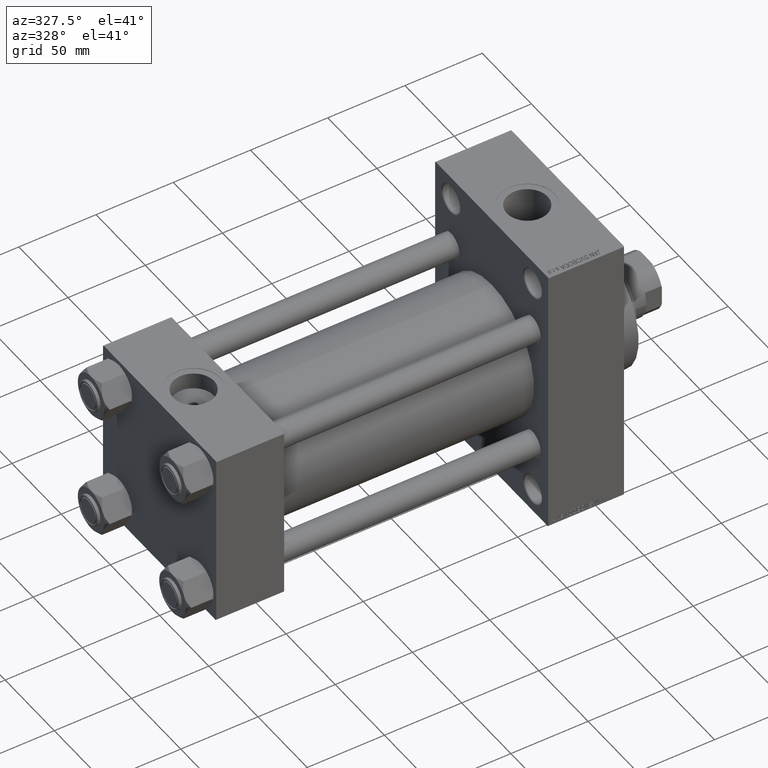
[diagram: clean part render]
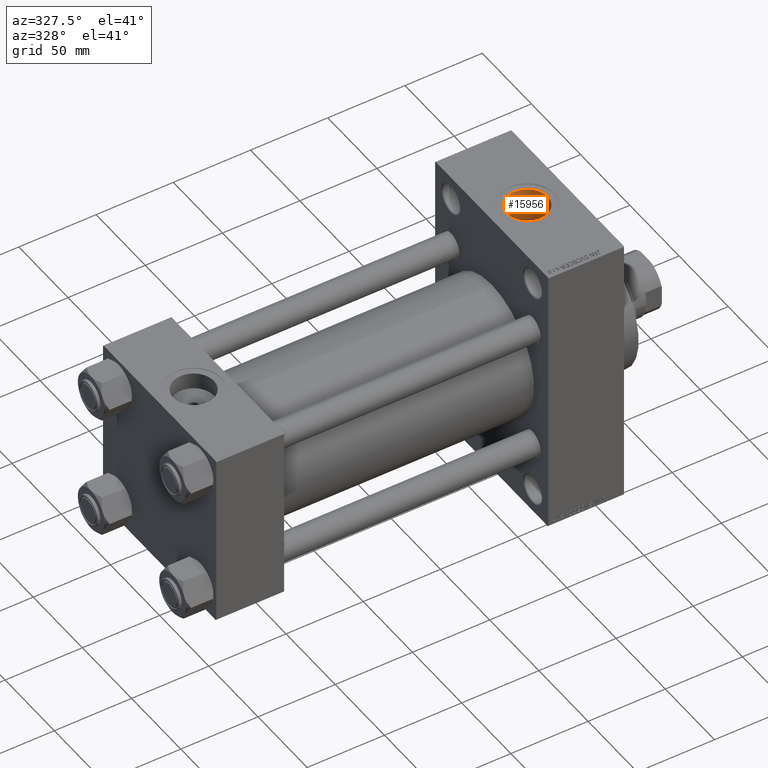
[diagram: same view with one face highlighted and labeled with its STEP entity id]
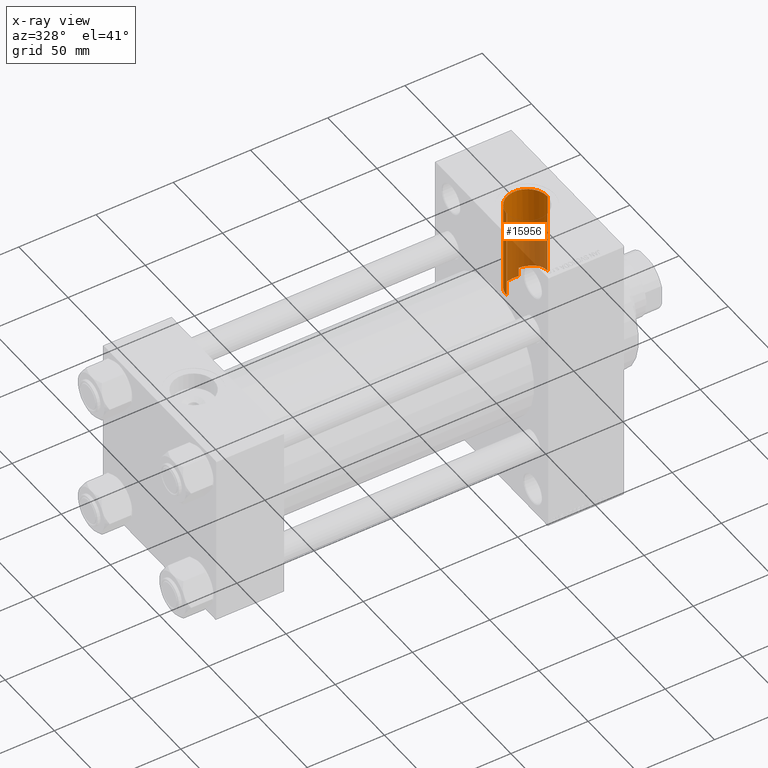
[diagram: x-ray of the same camera — body ghosted, the highlighted face saturated]
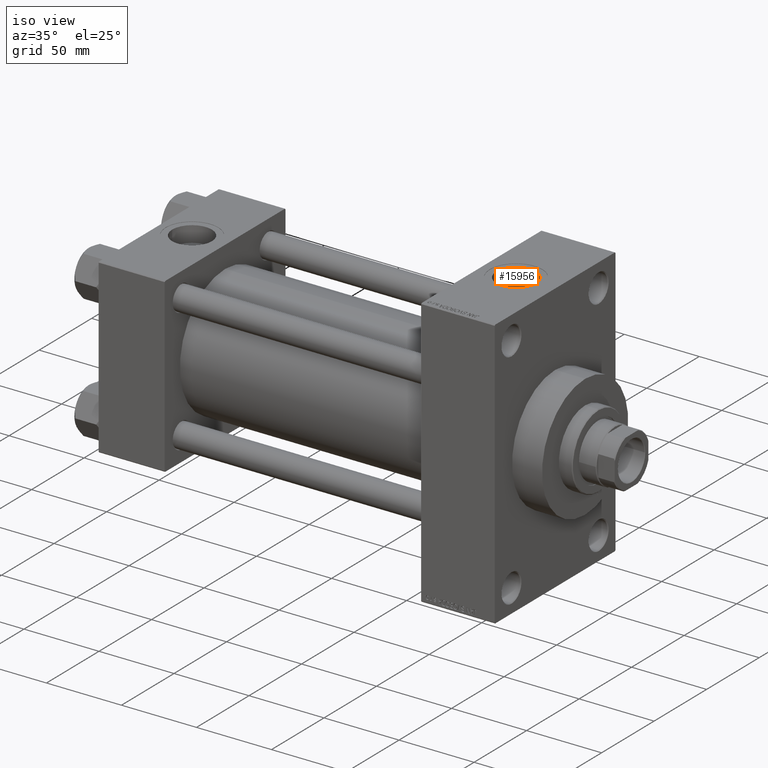
[diagram: same view with one face highlighted and labeled with its STEP entity id]
A machine part, auxiliary view. The second image highlights one B-rep face of the part: STEP entity #15956.
The next image is the same camera in x-ray: the body ghosted, the highlighted face saturated — about 46% of this face is hidden behind the body in this view.
A second angle (iso view) of the same face is appended — the face is thin or edge-on in the first view.
In plain terms, the highlighted cylindrical surface (edge-blend (fillet) strip) has radius 13.22 mm, axis along (0, 0, -1).
Its self-contained STEP definition (entity closure, byte-faithful):
#571 = DIRECTION ( 'NONE',  ( 0.000000000000000000, 0.000000000000000000, -1.000000000000000000 ) ) ;
#1928 = ORIENTED_EDGE ( 'NONE', *, *, #45464, .T. ) ;
#2111 = EDGE_CURVE ( 'NONE', #15084, #37032, #30290, .T. ) ;
#2194 = VERTEX_POINT ( 'NONE', #43598 ) ;
#2398 = EDGE_CURVE ( 'NONE', #3997, #2194, #34122, .T. ) ;
#2737 = CARTESIAN_POINT ( 'NONE',  ( 243.5945103277782948, 12.00118958920799983, 33.94198458417640296 ) ) ;
#3338 = CARTESIAN_POINT ( 'NONE',  ( 240.7400000000000375, 12.93293470176043947, 112.7999999999999829 ) ) ;
#3762 = CARTESIAN_POINT ( 'NONE',  ( 246.9855853527145939, 9.703877399782234292, 34.66842035655219689 ) ) ;
#3852 = CARTESIAN_POINT ( 'NONE',  ( 230.4271501200177283, 10.84687044312919646, 28.50745100355764450 ) ) ;
#3997 = VERTEX_POINT ( 'NONE', #41715 ) ;
#4182 = ORIENTED_EDGE ( 'NONE', *, *, #17422, .T. ) ;
#6552 = EDGE_CURVE ( 'NONE', #7352, #37032, #11147, .T. ) ;
#6762 = CARTESIAN_POINT ( 'NONE',  ( 251.1379817546423112, 1.518265865167174322, 35.96994912351961204 ) ) ;
#7025 = CARTESIAN_POINT ( 'NONE',  ( 251.2033327349465424, 0.7640029534827972313, 35.99386990409605147 ) ) ;
#7352 = VERTEX_POINT ( 'NONE', #11669 ) ;
#7365 = CARTESIAN_POINT ( 'NONE',  ( 225.2233236804503633, 3.430416358514371211, 30.31031417239466208 ) ) ;
#7523 = CARTESIAN_POINT ( 'NONE',  ( 242.2060821151613652, 12.55531642788232993, 33.74093801992369634 ) ) ;
#7624 = CARTESIAN_POINT ( 'NONE',  ( 224.9192796940202754, 1.977766912824123757, 30.43984725220107990 ) ) ;
#7884 = CARTESIAN_POINT ( 'NONE',  ( 229.2896176093951226, 9.956384615881470168, 28.83096279477900836 ) ) ;
#9604 = DIRECTION ( 'NONE',  ( 1.000000000000000000, 0.000000000000000000, 0.000000000000000000 ) ) ;
#9614 = ORIENTED_EDGE ( 'NONE', *, *, #2398, .F. ) ;
#10213 = DIRECTION ( 'NONE',  ( 0.000000000000000000, 0.000000000000000000, -1.000000000000000000 ) ) ;
#10914 = CARTESIAN_POINT ( 'NONE',  ( 235.3256342958763980, 12.95594869095342361, 27.61177267963252646 ) ) ;
#11147 = B_SPLINE_CURVE_WITH_KNOTS ( 'NONE', 3,
 ( #33811, #30547, #22226, #7624, #18684, #7365, #45652, #49421, #14659, #15174, #15414, #18941, #11909, #22975, #7884, #14918, #3852, #27277, #30029, #27032, #19442, #10914, #11165, #34814, #22716, #30291, #38074, #34321, #30790, #46151 ),
 .UNSPECIFIED., .F., .F.,
 ( 4, 2, 2, 2, 2, 2, 2, 2, 2, 2, 2, 2, 2, 2, 4 ),
 ( 0.04185757538675115297, 0.04333653936425788805, 0.04481550334176461620, 0.04629446731927135128, 0.04777343129677807942, 0.05073135925179154265, 0.05221032322929830549, 0.05368928720680506139, 0.05516825118431181729, 0.05664721516181857319, 0.05960514311683201560, 0.06108410709433872987, 0.06256307107184545802, 0.06404203504935218616, 0.06552099902685890043 ),
 .UNSPECIFIED. ) ;
#11165 = CARTESIAN_POINT ( 'NONE',  ( 235.8119409645371150, 13.04724532387751701, 27.56854024737253894 ) ) ;
#11669 = CARTESIAN_POINT ( 'NONE',  ( 224.7800000000000580, 3.735152335644797090E-15, 30.50000000000000000 ) ) ;
#11909 = CARTESIAN_POINT ( 'NONE',  ( 228.2493793498787227, 8.940352169284469852, 29.16250894268883442 ) ) ;
#12450 = CARTESIAN_POINT ( 'NONE',  ( 251.2200000000000557, -9.241894346338513140E-15, 112.7999999999999829 ) ) ;
#13714 = CARTESIAN_POINT ( 'NONE',  ( 240.7400000000000375, 12.93293470176043947, 27.62225914004864080 ) ) ;
#14114 = CARTESIAN_POINT ( 'NONE',  ( 238.0000000000000568, -1.086087741481131350E-14, 89.79999999999998295 ) ) ;
#14659 = CARTESIAN_POINT ( 'NONE',  ( 225.8710626762529330, 5.282033915368367083, 30.04254330308662446 ) ) ;
#14821 = CARTESIAN_POINT ( 'NONE',  ( 240.7400000000000375, 12.93293470176043947, 33.59671412504503252 ) ) ;
#14918 = CARTESIAN_POINT ( 'NONE',  ( 230.0371891369870241, 10.56380609296688355, 28.61398279029830505 ) ) ;
#15083 = CARTESIAN_POINT ( 'NONE',  ( 251.2200000000001125, 0.3819698288429297928, 36.00000000000000711 ) ) ;
#15084 = VERTEX_POINT ( 'NONE', #25799 ) ;
#15174 = CARTESIAN_POINT ( 'NONE',  ( 226.5110741800255312, 6.613878971456260025, 29.78798023624082703 ) ) ;
#15414 = CARTESIAN_POINT ( 'NONE',  ( 227.0260244560768683, 7.434870375886644567, 29.59044782374041205 ) ) ;
#15956 = ADVANCED_FACE ( 'NONE', ( #22272 ), #21763, .F. ) ;
#16059 = ORIENTED_EDGE ( 'NONE', *, *, #6552, .T. ) ;
#17422 = EDGE_CURVE ( 'NONE', #15084, #24892, #30192, .T. ) ;
#18491 = DIRECTION ( 'NONE',  ( -1.000000000000000000, 0.000000000000000000, 0.000000000000000000 ) ) ;
#18684 = CARTESIAN_POINT ( 'NONE',  ( 225.0034013176459382, 2.469744289827831007, 30.40367189608673471 ) ) ;
#18847 = CARTESIAN_POINT ( 'NONE',  ( 241.4867003901545672, 12.77473711426741687, 33.65761171941716157 ) ) ;
#18941 = CARTESIAN_POINT ( 'NONE',  ( 227.9260598174467987, 8.574286465039108407, 29.27263374885119873 ) ) ;
#19111 = CARTESIAN_POINT ( 'NONE',  ( 250.1796393711019277, 5.154167772853360141, 35.63079688237382925 ) ) ;
#19442 = CARTESIAN_POINT ( 'NONE',  ( 233.8969839307878544, 12.60537237624622975, 27.77446624569849831 ) ) ;
#21763 = CYLINDRICAL_SURFACE ( 'NONE', #26790, 13.21999999999998110 ) ;
#22102 = VECTOR ( 'NONE', #41359, 1000.000000000000000 ) ;
#22226 = CARTESIAN_POINT ( 'NONE',  ( 224.8074965746005205, 0.9872482238805267984, 30.48805017778671456 ) ) ;
#22272 = FACE_OUTER_BOUND ( 'NONE', #34573, .T. ) ;
#22375 = CARTESIAN_POINT ( 'NONE',  ( 250.3223465543051418, 4.803346231252588971, 35.67993160896549654 ) ) ;
#22621 = CARTESIAN_POINT ( 'NONE',  ( 247.2544909056829567, 9.447833359205588977, 34.73924717178598343 ) ) ;
#22716 = CARTESIAN_POINT ( 'NONE',  ( 237.2979727381282942, 13.21057355757989704, 27.49055875873993671 ) ) ;
#22975 = CARTESIAN_POINT ( 'NONE',  ( 228.9320074090819901, 9.632030437268069178, 28.94142039359465812 ) ) ;
#23929 = ORIENTED_EDGE ( 'NONE', *, *, #37871, .F. ) ;
#24892 = VERTEX_POINT ( 'NONE', #40057 ) ;
#25799 = CARTESIAN_POINT ( 'NONE',  ( 240.7400000000000375, 12.93293470176043947, 33.59671412504503252 ) ) ;
#26161 = CARTESIAN_POINT ( 'NONE',  ( 250.7051556392588338, 3.731388303156857322, 35.81334052950151658 ) ) ;
#26667 = CARTESIAN_POINT ( 'NONE',  ( 247.7718099334105375, 8.911727539146788502, 34.88062444271564999 ) ) ;
#26790 = AXIS2_PLACEMENT_3D ( 'NONE', #44695, #10213, #18491 ) ;
#27032 = CARTESIAN_POINT ( 'NONE',  ( 232.9827127633823523, 12.27015841204414137, 27.92701712990833585 ) ) ;
#27277 = CARTESIAN_POINT ( 'NONE',  ( 231.2405905081905644, 11.37158902866325860, 28.30223178644142479 ) ) ;
#29690 = CARTESIAN_POINT ( 'NONE',  ( 251.0893087182809040, 1.892035420910302745, 35.95216273564662401 ) ) ;
#30029 = CARTESIAN_POINT ( 'NONE',  ( 231.6661582615323596, 11.61426874580966206, 28.20310319464547177 ) ) ;
#30192 = B_SPLINE_CURVE_WITH_KNOTS ( 'NONE', 3,
 ( #14821, #18847, #7523, #2737, #45809, #34222, #45290, #3762, #22621, #26667, #41515, #48583, #41765, #37480, #37974, #19111, #22375, #26161, #49591, #29690, #6762, #7025, #15083, #37731 ),
 .UNSPECIFIED., .F., .F.,
 ( 4, 2, 2, 2, 2, 2, 2, 2, 2, 2, 2, 4 ),
 ( 0.000000000000000000, 0.002262540966026159190, 0.004525081932052318380, 0.006787622898078477136, 0.007918893381091524422, 0.009050163864104572575, 0.01131270483013060643, 0.01244397531314362509, 0.01357524579615664029, 0.01583778676218273312, 0.01696905724519576220, 0.01810032772820879474 ),
 .UNSPECIFIED. ) ;
#30290 = LINE ( 'NONE', #3338, #34957 ) ;
#30291 = CARTESIAN_POINT ( 'NONE',  ( 238.2851615108021122, 13.22613998524881040, 27.48307289366609751 ) ) ;
#30547 = CARTESIAN_POINT ( 'NONE',  ( 224.7800000000000580, 0.4930897905089592359, 30.50000000000000355 ) ) ;
#30790 = CARTESIAN_POINT ( 'NONE',  ( 240.2536187678448414, 13.03598049970482897, 27.57401237756087653 ) ) ;
#31584 = LINE ( 'NONE', #12450, #38553 ) ;
#32536 = AXIS2_PLACEMENT_3D ( 'NONE', #14114, #44097, #9604 ) ;
#33811 = CARTESIAN_POINT ( 'NONE',  ( 224.7800000000000580, 3.735152335644797090E-15, 30.50000000000000000 ) ) ;
#34122 = CIRCLE ( 'NONE', #32536, 13.22000000000000952 ) ;
#34222 = CARTESIAN_POINT ( 'NONE',  ( 245.5493998682713084, 10.87852352895255059, 34.31951962323490335 ) ) ;
#34321 = CARTESIAN_POINT ( 'NONE',  ( 239.7607663062246672, 13.11151955524787560, 27.53798861069349968 ) ) ;
#34573 = EDGE_LOOP ( 'NONE', ( #23929, #9614, #1928, #16059, #39814, #4182 ) ) ;
#34814 = CARTESIAN_POINT ( 'NONE',  ( 236.8033419719261872, 13.17521242515508639, 27.50761348180686383 ) ) ;
#34957 = VECTOR ( 'NONE', #571, 1000.000000000000000 ) ;
#37032 = VERTEX_POINT ( 'NONE', #13714 ) ;
#37080 = CARTESIAN_POINT ( 'NONE',  ( 224.7800000000000580, -1.086087741481131350E-14, 112.7999999999999829 ) ) ;
#37480 = CARTESIAN_POINT ( 'NONE',  ( 249.6983450057127243, 6.168928695871304768, 35.46904263421719605 ) ) ;
#37731 = CARTESIAN_POINT ( 'NONE',  ( 251.2200000000000557, 4.408731805096607676E-15, 36.00000000000000000 ) ) ;
#37871 = EDGE_CURVE ( 'NONE', #2194, #24892, #31584, .T. ) ;
#37974 = CARTESIAN_POINT ( 'NONE',  ( 249.8678405391318620, 5.836387716606523668, 35.52542343625400179 ) ) ;
#38074 = CARTESIAN_POINT ( 'NONE',  ( 238.7777193278499794, 13.20633922326211618, 27.49264203546941943 ) ) ;
#38553 = VECTOR ( 'NONE', #43422, 1000.000000000000000 ) ;
#39814 = ORIENTED_EDGE ( 'NONE', *, *, #2111, .F. ) ;
#40057 = CARTESIAN_POINT ( 'NONE',  ( 251.2200000000000557, 4.408731805096607676E-15, 36.00000000000000000 ) ) ;
#40868 = LINE ( 'NONE', #37080, #22102 ) ;
#41359 = DIRECTION ( 'NONE',  ( 0.000000000000000000, 0.000000000000000000, -1.000000000000000000 ) ) ;
#41515 = CARTESIAN_POINT ( 'NONE',  ( 248.0210832298416790, 8.630590761265699129, 34.95143037011762033 ) ) ;
#41715 = CARTESIAN_POINT ( 'NONE',  ( 224.7800000000000580, -1.086087741481131350E-14, 89.79999999999998295 ) ) ;
#41765 = CARTESIAN_POINT ( 'NONE',  ( 249.1498648550292216, 7.141648424859566191, 35.29067191690106142 ) ) ;
#43422 = DIRECTION ( 'NONE',  ( 0.000000000000000000, 0.000000000000000000, -1.000000000000000000 ) ) ;
#43598 = CARTESIAN_POINT ( 'NONE',  ( 251.2200000000000557, -9.241894346338516295E-15, 89.79999999999998295 ) ) ;
#44097 = DIRECTION ( 'NONE',  ( -0.000000000000000000, -0.000000000000000000, -1.000000000000000000 ) ) ;
#44695 = CARTESIAN_POINT ( 'NONE',  ( 238.0000000000000568, -1.086087741481131350E-14, 112.7999999999999829 ) ) ;
#45290 = CARTESIAN_POINT ( 'NONE',  ( 246.1482271659915000, 10.43671964436601662, 34.45770319535727566 ) ) ;
#45464 = EDGE_CURVE ( 'NONE', #3997, #7352, #40868, .T. ) ;
#45652 = CARTESIAN_POINT ( 'NONE',  ( 225.3594029954052758, 3.901785162874669144, 30.25300952143917144 ) ) ;
#45809 = CARTESIAN_POINT ( 'NONE',  ( 244.2649626807106813, 11.66558850424322280, 34.06003150599318019 ) ) ;
#46151 = CARTESIAN_POINT ( 'NONE',  ( 240.7400000000000375, 12.93293470176043947, 27.62225914004864080 ) ) ;
#48583 = CARTESIAN_POINT ( 'NONE',  ( 248.7312113704628302, 7.757108125705363122, 35.15943117783079686 ) ) ;
#49421 = CARTESIAN_POINT ( 'NONE',  ( 225.6830193899777441, 4.827070409900205306, 30.11922814116230995 ) ) ;
#49591 = CARTESIAN_POINT ( 'NONE',  ( 250.8962416663183603, 3.003490287928888058, 35.88217189229082038 ) ) ;